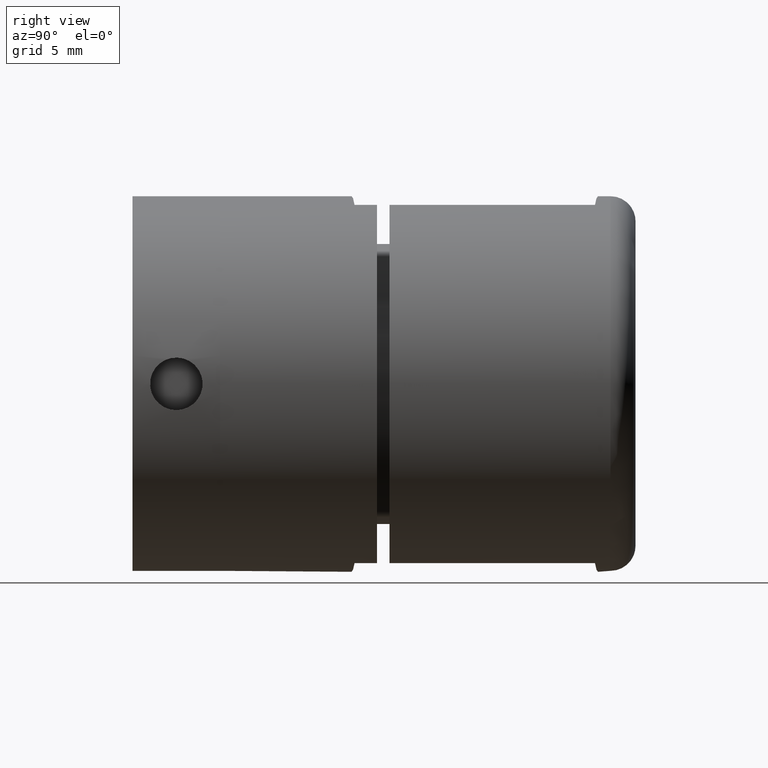
[diagram: clean part render]
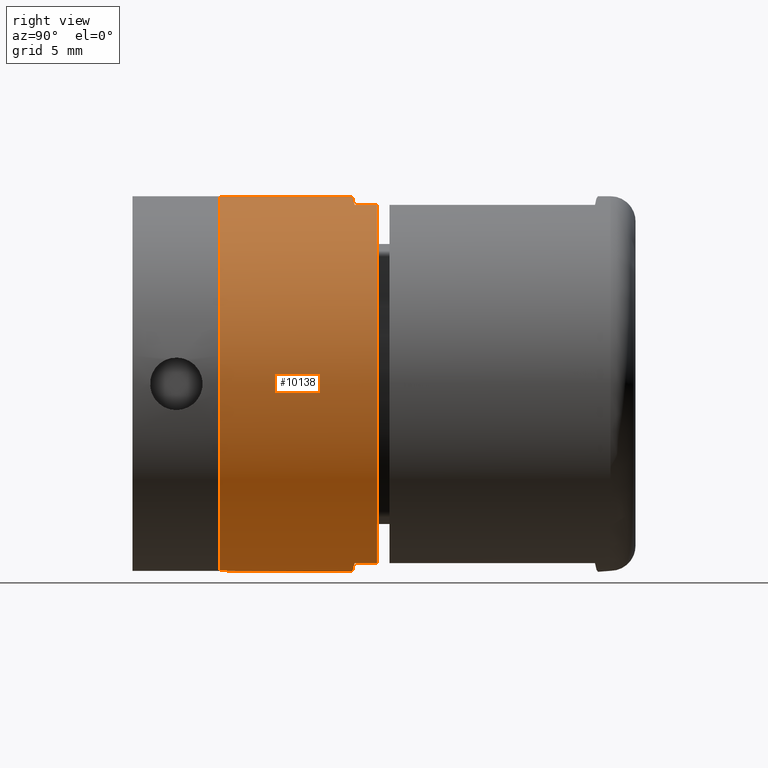
[diagram: same view with one face highlighted and labeled with its STEP entity id]
A machine part, right view. The second image highlights one B-rep face of the part: STEP entity #10138.
In plain terms, the highlighted cylindrical surface (bore or boss wall) has radius 15 mm, axis along (0, 1, -0).
Its self-contained STEP definition (entity closure, byte-faithful):
#210 = LINE ( 'NONE', #4607, #1046 ) ;
#277 = VERTEX_POINT ( 'NONE', #5137 ) ;
#496 = FACE_OUTER_BOUND ( 'NONE', #14497, .T. ) ;
#845 = VECTOR ( 'NONE', #4395, 1000.000000000000000 ) ;
#915 = VERTEX_POINT ( 'NONE', #11536 ) ;
#1046 = VECTOR ( 'NONE', #15260, 1000.000000000000000 ) ;
#1216 = CIRCLE ( 'NONE', #2409, 15.00000000000000000 ) ;
#1261 = VERTEX_POINT ( 'NONE', #15519 ) ;
#1845 = AXIS2_PLACEMENT_3D ( 'NONE', #3236, #12715, #12777 ) ;
#2149 = ORIENTED_EDGE ( 'NONE', *, *, #9590, .T. ) ;
#2183 = LINE ( 'NONE', #11211, #16010 ) ;
#2210 = CARTESIAN_POINT ( 'NONE',  ( 0.0000000000000000000, 2.029999999999998900, 15.00000000000000000 ) ) ;
#2291 = VERTEX_POINT ( 'NONE', #3741 ) ;
#2396 = ORIENTED_EDGE ( 'NONE', *, *, #16087, .T. ) ;
#2409 = AXIS2_PLACEMENT_3D ( 'NONE', #10130, #5918, #7213 ) ;
#2759 = CARTESIAN_POINT ( 'NONE',  ( 0.0000000000000000000, 2.029999999999998900, -15.00000000000000000 ) ) ;
#2971 = CARTESIAN_POINT ( 'NONE',  ( -4.500000000000005300, 12.52999999999999800, 14.30908802125418000 ) ) ;
#3236 = CARTESIAN_POINT ( 'NONE',  ( 0.0000000000000000000, 0.0000000000000000000, 0.0000000000000000000 ) ) ;
#3285 = EDGE_CURVE ( 'NONE', #2291, #5254, #1216, .T. ) ;
#3741 = CARTESIAN_POINT ( 'NONE',  ( 4.500000000000000000, 0.0000000000000000000, 14.30908802125418000 ) ) ;
#4268 = DIRECTION ( 'NONE',  ( 0.0000000000000000000, 1.000000000000000000, 0.0000000000000000000 ) ) ;
#4395 = DIRECTION ( 'NONE',  ( -0.0000000000000000000, -1.000000000000000000, -0.0000000000000000000 ) ) ;
#4607 = CARTESIAN_POINT ( 'NONE',  ( 4.500000000000005300, 12.52999999999999800, -14.30908802125418000 ) ) ;
#4846 = CARTESIAN_POINT ( 'NONE',  ( -3.041058575645903000, 1.870624873380737600, -14.76790387309894600 ) ) ;
#4860 = VERTEX_POINT ( 'NONE', #16841 ) ;
#4894 =( BOUNDED_CURVE ( )  B_SPLINE_CURVE ( 3, ( #15145, #14332, #4846, #7605 ),
 .UNSPECIFIED., .F., .F. ) 
 B_SPLINE_CURVE_WITH_KNOTS ( ( 4, 4 ),
 ( 4.712388980384689700, 5.017081634400087300 ),
 .UNSPECIFIED. ) 
 CURVE ( )  GEOMETRIC_REPRESENTATION_ITEM ( )  RATIONAL_B_SPLINE_CURVE ( ( 1.000000000000000000, 0.9922784838777378700, 0.9922784838777378700, 1.000000000000000000 ) ) 
 REPRESENTATION_ITEM ( '' )  );
#5137 = CARTESIAN_POINT ( 'NONE',  ( -4.500000000000000000, 0.0000000000000000000, 14.30908802125418000 ) ) ;
#5254 = VERTEX_POINT ( 'NONE', #11918 ) ;
#5749 = EDGE_CURVE ( 'NONE', #277, #1261, #7038, .T. ) ;
#5789 = EDGE_CURVE ( 'NONE', #10559, #10559, #13733, .T. ) ;
#5918 = DIRECTION ( 'NONE',  ( 0.0000000000000000000, 1.000000000000000000, 0.0000000000000000000 ) ) ;
#5929 = CYLINDRICAL_SURFACE ( 'NONE', #8630, 15.00000000000000000 ) ;
#6072 = ORIENTED_EDGE ( 'NONE', *, *, #5749, .T. ) ;
#6789 =( BOUNDED_CURVE ( )  B_SPLINE_CURVE ( 3, ( #14906, #9507, #16113, #2759 ),
 .UNSPECIFIED., .F., .F. ) 
 B_SPLINE_CURVE_WITH_KNOTS ( ( 4, 4 ),
 ( 1.266103672779499000, 1.570796326794896600 ),
 .UNSPECIFIED. ) 
 CURVE ( )  GEOMETRIC_REPRESENTATION_ITEM ( )  RATIONAL_B_SPLINE_CURVE ( ( 1.000000000000000000, 0.9922784838777378700, 0.9922784838777378700, 1.000000000000000000 ) ) 
 REPRESENTATION_ITEM ( '' )  );
#7038 = LINE ( 'NONE', #2971, #11201 ) ;
#7104 = CARTESIAN_POINT ( 'NONE',  ( 0.0000000000000000000, 12.52999999999999900, 15.00000000000000000 ) ) ;
#7213 = DIRECTION ( 'NONE',  ( 0.0000000000000000000, 0.0000000000000000000, 1.000000000000000000 ) ) ;
#7324 = DIRECTION ( 'NONE',  ( -0.0000000000000000000, -1.000000000000000000, -0.0000000000000000000 ) ) ;
#7504 = VERTEX_POINT ( 'NONE', #9555 ) ;
#7508 = ORIENTED_EDGE ( 'NONE', *, *, #8215, .T. ) ;
#7552 = LINE ( 'NONE', #12383, #845 ) ;
#7605 = CARTESIAN_POINT ( 'NONE',  ( -4.500000000000000900, 1.794164993226296900, -14.30908802125418500 ) ) ;
#7677 = CARTESIAN_POINT ( 'NONE',  ( -4.500000000000000900, 1.794164993226296900, 14.30908802125418300 ) ) ;
#8215 = EDGE_CURVE ( 'NONE', #5254, #7504, #210, .T. ) ;
#8353 = EDGE_CURVE ( 'NONE', #17349, #11069, #4894, .T. ) ;
#8630 = AXIS2_PLACEMENT_3D ( 'NONE', #16808, #15055, #12029 ) ;
#8892 = ORIENTED_EDGE ( 'NONE', *, *, #9285, .T. ) ;
#9285 = EDGE_CURVE ( 'NONE', #7504, #17349, #6789, .T. ) ;
#9385 = CIRCLE ( 'NONE', #1845, 15.00000000000000000 ) ;
#9507 = CARTESIAN_POINT ( 'NONE',  ( 3.041058575645907000, 1.870624873380739100, -14.76790387309894600 ) ) ;
#9555 = CARTESIAN_POINT ( 'NONE',  ( 4.500000000000000900, 1.794164993226296900, -14.30908802125418000 ) ) ;
#9590 = EDGE_CURVE ( 'NONE', #4860, #277, #9385, .T. ) ;
#10130 = CARTESIAN_POINT ( 'NONE',  ( 0.0000000000000000000, 0.0000000000000000000, 0.0000000000000000000 ) ) ;
#10138 = ADVANCED_FACE ( 'NONE', ( #496, #17028 ), #5929, .T. ) ;
#10177 = CARTESIAN_POINT ( 'NONE',  ( 3.041058575645903000, 1.870624873380739400, 14.76790387309894600 ) ) ;
#10291 = CARTESIAN_POINT ( 'NONE',  ( 1.529386172815872200, 1.949848267016525400, 14.99999999999999800 ) ) ;
#10419 = CARTESIAN_POINT ( 'NONE',  ( -1.529386172815876000, 1.949848267016523600, 14.99999999999999800 ) ) ;
#10442 =( BOUNDED_CURVE ( )  B_SPLINE_CURVE ( 3, ( #16779, #10291, #10177, #11563 ),
 .UNSPECIFIED., .F., .F. ) 
 B_SPLINE_CURVE_WITH_KNOTS ( ( 4, 4 ),
 ( 4.712388980384689700, 5.017081634400087300 ),
 .UNSPECIFIED. ) 
 CURVE ( )  GEOMETRIC_REPRESENTATION_ITEM ( )  RATIONAL_B_SPLINE_CURVE ( ( 1.000000000000000000, 0.9922784838777378700, 0.9922784838777378700, 1.000000000000000000 ) ) 
 REPRESENTATION_ITEM ( '' )  );
#10537 = ORIENTED_EDGE ( 'NONE', *, *, #11557, .T. ) ;
#10559 = VERTEX_POINT ( 'NONE', #7104 ) ;
#10731 = VERTEX_POINT ( 'NONE', #14801 ) ;
#10953 = AXIS2_PLACEMENT_3D ( 'NONE', #14121, #15626, #11346 ) ;
#11069 = VERTEX_POINT ( 'NONE', #16462 ) ;
#11201 = VECTOR ( 'NONE', #4268, 1000.000000000000000 ) ;
#11211 = CARTESIAN_POINT ( 'NONE',  ( 4.500000000000005300, 12.52999999999999800, 14.30908802125418000 ) ) ;
#11346 = DIRECTION ( 'NONE',  ( 0.0000000000000000000, 0.0000000000000000000, 1.000000000000000000 ) ) ;
#11412 =( BOUNDED_CURVE ( )  B_SPLINE_CURVE ( 3, ( #7677, #17034, #10419, #2210 ),
 .UNSPECIFIED., .F., .T. ) 
 B_SPLINE_CURVE_WITH_KNOTS ( ( 4, 4 ),
 ( 1.266103672779499000, 1.570796326794896600 ),
 .UNSPECIFIED. ) 
 CURVE ( )  GEOMETRIC_REPRESENTATION_ITEM ( )  RATIONAL_B_SPLINE_CURVE ( ( 1.000000000000000000, 0.9922784838777378700, 0.9922784838777378700, 1.000000000000000000 ) ) 
 REPRESENTATION_ITEM ( '' )  );
#11452 = EDGE_LOOP ( 'NONE', ( #2149, #6072, #10537, #2396, #14644, #16767, #7508, #8892, #11473, #16903 ) ) ;
#11473 = ORIENTED_EDGE ( 'NONE', *, *, #8353, .T. ) ;
#11536 = CARTESIAN_POINT ( 'NONE',  ( 0.0000000000000000000, 2.029999999999998900, 15.00000000000000000 ) ) ;
#11557 = EDGE_CURVE ( 'NONE', #1261, #915, #11412, .T. ) ;
#11563 = CARTESIAN_POINT ( 'NONE',  ( 4.500000000000000900, 1.794164993226296900, 14.30908802125418000 ) ) ;
#11918 = CARTESIAN_POINT ( 'NONE',  ( 4.500000000000000000, 0.0000000000000000000, -14.30908802125418000 ) ) ;
#12029 = DIRECTION ( 'NONE',  ( 0.0000000000000000000, 0.0000000000000000000, -1.000000000000000000 ) ) ;
#12383 = CARTESIAN_POINT ( 'NONE',  ( -4.500000000000005300, 12.52999999999999800, -14.30908802125418000 ) ) ;
#12715 = DIRECTION ( 'NONE',  ( 0.0000000000000000000, 1.000000000000000000, 0.0000000000000000000 ) ) ;
#12777 = DIRECTION ( 'NONE',  ( 0.0000000000000000000, 0.0000000000000000000, 1.000000000000000000 ) ) ;
#13733 = CIRCLE ( 'NONE', #10953, 15.00000000000000000 ) ;
#14121 = CARTESIAN_POINT ( 'NONE',  ( 0.0000000000000000000, 12.52999999999999900, 0.0000000000000000000 ) ) ;
#14332 = CARTESIAN_POINT ( 'NONE',  ( -1.529386172815872200, 1.949848267016523600, -14.99999999999999800 ) ) ;
#14387 = EDGE_CURVE ( 'NONE', #11069, #4860, #7552, .T. ) ;
#14497 = EDGE_LOOP ( 'NONE', ( #15111 ) ) ;
#14644 = ORIENTED_EDGE ( 'NONE', *, *, #16976, .T. ) ;
#14801 = CARTESIAN_POINT ( 'NONE',  ( 4.500000000000000900, 1.794164993226296900, 14.30908802125418000 ) ) ;
#14906 = CARTESIAN_POINT ( 'NONE',  ( 4.500000000000000900, 1.794164993226296900, -14.30908802125418000 ) ) ;
#15055 = DIRECTION ( 'NONE',  ( -0.0000000000000000000, -1.000000000000000000, -0.0000000000000000000 ) ) ;
#15111 = ORIENTED_EDGE ( 'NONE', *, *, #5789, .F. ) ;
#15145 = CARTESIAN_POINT ( 'NONE',  ( 0.0000000000000000000, 2.029999999999998900, -15.00000000000000000 ) ) ;
#15260 = DIRECTION ( 'NONE',  ( 0.0000000000000000000, 1.000000000000000000, 0.0000000000000000000 ) ) ;
#15519 = CARTESIAN_POINT ( 'NONE',  ( -4.500000000000000900, 1.794164993226296900, 14.30908802125418300 ) ) ;
#15626 = DIRECTION ( 'NONE',  ( 0.0000000000000000000, 1.000000000000000000, 0.0000000000000000000 ) ) ;
#16010 = VECTOR ( 'NONE', #7324, 1000.000000000000000 ) ;
#16087 = EDGE_CURVE ( 'NONE', #915, #10731, #10442, .T. ) ;
#16113 = CARTESIAN_POINT ( 'NONE',  ( 1.529386172815876000, 1.949848267016525400, -14.99999999999999800 ) ) ;
#16462 = CARTESIAN_POINT ( 'NONE',  ( -4.500000000000000900, 1.794164993226296900, -14.30908802125418500 ) ) ;
#16719 = CARTESIAN_POINT ( 'NONE',  ( 0.0000000000000000000, 2.029999999999998900, -15.00000000000000000 ) ) ;
#16767 = ORIENTED_EDGE ( 'NONE', *, *, #3285, .T. ) ;
#16779 = CARTESIAN_POINT ( 'NONE',  ( 0.0000000000000000000, 2.029999999999998900, 15.00000000000000000 ) ) ;
#16808 = CARTESIAN_POINT ( 'NONE',  ( 0.0000000000000000000, 12.52999999999999900, 0.0000000000000000000 ) ) ;
#16841 = CARTESIAN_POINT ( 'NONE',  ( -4.500000000000000000, 0.0000000000000000000, -14.30908802125418000 ) ) ;
#16903 = ORIENTED_EDGE ( 'NONE', *, *, #14387, .T. ) ;
#16976 = EDGE_CURVE ( 'NONE', #10731, #2291, #2183, .T. ) ;
#17028 = FACE_OUTER_BOUND ( 'NONE', #11452, .T. ) ;
#17034 = CARTESIAN_POINT ( 'NONE',  ( -3.041058575645907000, 1.870624873380737400, 14.76790387309894600 ) ) ;
#17349 = VERTEX_POINT ( 'NONE', #16719 ) ;